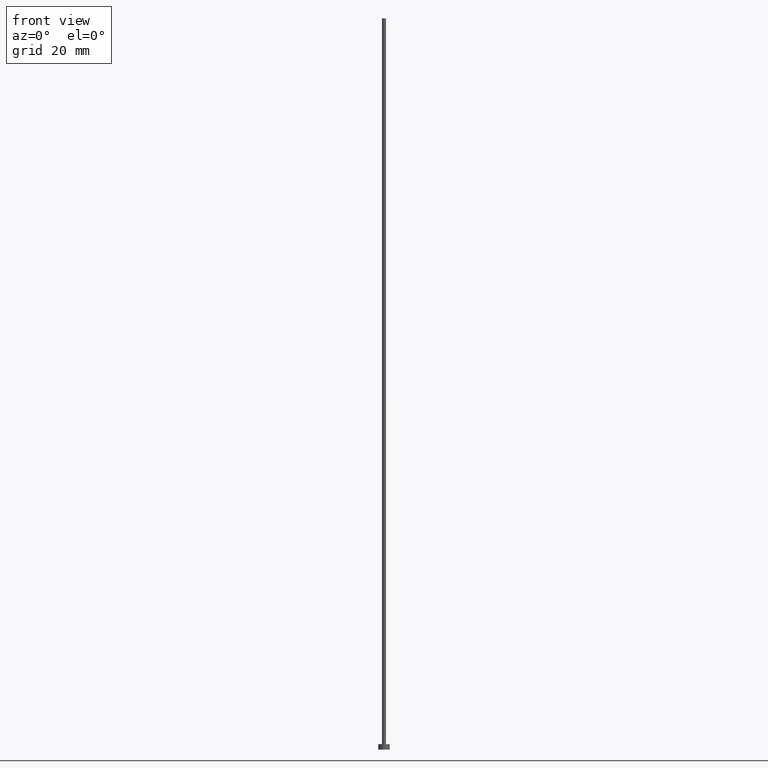
[diagram: clean part render]
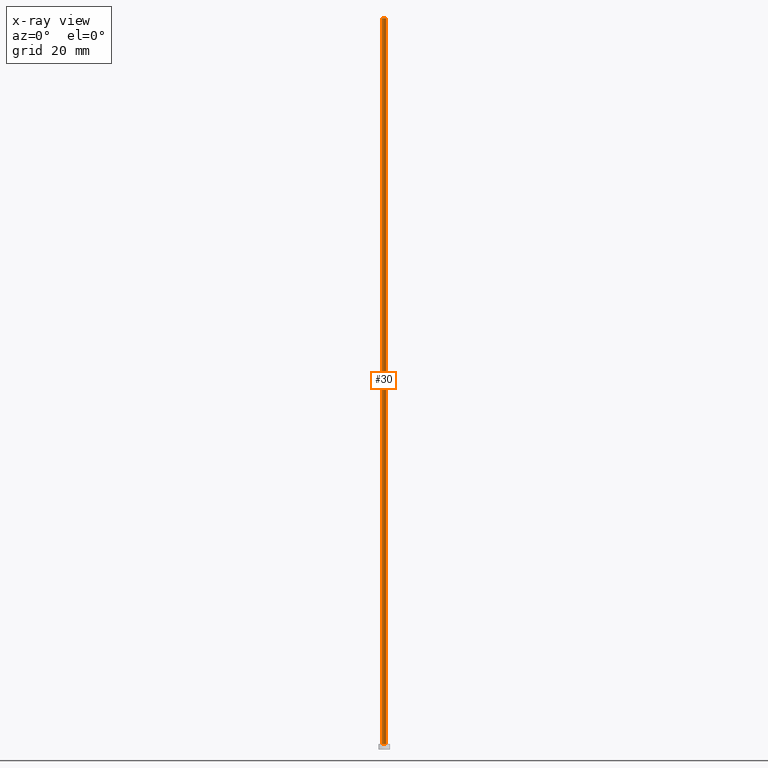
[diagram: x-ray — body ghosted, one internal face saturated and labeled with its STEP entity id]
A machine part, front view, then the same camera in x-ray: the body is ghosted and one INTERNAL B-rep face — a face not visible from any outside direction — is saturated and labeled: STEP entity #30.
In plain terms, the highlighted cylindrical surface (edge-blend (fillet) strip) has radius 0.45 mm, axis along (-0, -0, -1).
Its self-contained STEP definition (entity closure, byte-faithful):
#14 = VECTOR ( 'NONE', #18, 1000.000000000000000 ) ;
#16 = CARTESIAN_POINT ( 'NONE',  ( -0.4500000000000000111, 0.000000000000000000, 1.199999999999999956 ) ) ;
#17 = CARTESIAN_POINT ( 'NONE',  ( -0.4500000000000000111, 0.000000000000000000, 160.0000000000000284 ) ) ;
#18 = DIRECTION ( 'NONE',  ( -0.000000000000000000, -0.000000000000000000, -1.000000000000000000 ) ) ;
#21 = CARTESIAN_POINT ( 'NONE',  ( 0.4500000000000000111, 5.510910596163088939E-17, 160.0000000000000284 ) ) ;
#23 = AXIS2_PLACEMENT_3D ( 'NONE', #47, #129, #103 ) ;
#30 = ADVANCED_FACE ( 'NONE', ( #175 ), #222, .T. ) ;
#47 = CARTESIAN_POINT ( 'NONE',  ( 0.000000000000000000, 0.000000000000000000, 160.0000000000000284 ) ) ;
#53 = DIRECTION ( 'NONE',  ( 1.000000000000000000, 0.000000000000000000, 0.000000000000000000 ) ) ;
#57 = DIRECTION ( 'NONE',  ( -0.000000000000000000, -0.000000000000000000, -1.000000000000000000 ) ) ;
#65 = ORIENTED_EDGE ( 'NONE', *, *, #236, .T. ) ;
#67 = VECTOR ( 'NONE', #57, 1000.000000000000000 ) ;
#70 = ORIENTED_EDGE ( 'NONE', *, *, #164, .F. ) ;
#76 = ORIENTED_EDGE ( 'NONE', *, *, #108, .F. ) ;
#81 = LINE ( 'NONE', #17, #14 ) ;
#83 = LINE ( 'NONE', #21, #67 ) ;
#84 = EDGE_CURVE ( 'NONE', #177, #170, #83, .T. ) ;
#97 = CARTESIAN_POINT ( 'NONE',  ( 0.000000000000000000, 0.000000000000000000, 160.0000000000000284 ) ) ;
#98 = CARTESIAN_POINT ( 'NONE',  ( 0.4500000000000000111, 5.510910596163088939E-17, 160.0000000000000284 ) ) ;
#100 = CARTESIAN_POINT ( 'NONE',  ( 0.4500000000000000111, 5.510910596163088939E-17, 1.199999999999999956 ) ) ;
#103 = DIRECTION ( 'NONE',  ( -1.000000000000000000, 0.000000000000000000, 0.000000000000000000 ) ) ;
#108 = EDGE_CURVE ( 'NONE', #177, #144, #203, .T. ) ;
#129 = DIRECTION ( 'NONE',  ( -0.000000000000000000, -0.000000000000000000, -1.000000000000000000 ) ) ;
#138 = DIRECTION ( 'NONE',  ( 1.000000000000000000, 0.000000000000000000, 0.000000000000000000 ) ) ;
#141 = CARTESIAN_POINT ( 'NONE',  ( -0.4500000000000000111, 0.000000000000000000, 160.0000000000000284 ) ) ;
#144 = VERTEX_POINT ( 'NONE', #141 ) ;
#155 = CARTESIAN_POINT ( 'NONE',  ( 0.000000000000000000, 0.000000000000000000, 1.199999999999999956 ) ) ;
#164 = EDGE_CURVE ( 'NONE', #144, #206, #81, .T. ) ;
#169 = AXIS2_PLACEMENT_3D ( 'NONE', #155, #226, #53 ) ;
#170 = VERTEX_POINT ( 'NONE', #100 ) ;
#173 = CIRCLE ( 'NONE', #169, 0.4500000000000000111 ) ;
#175 = FACE_OUTER_BOUND ( 'NONE', #190, .T. ) ;
#177 = VERTEX_POINT ( 'NONE', #98 ) ;
#190 = EDGE_LOOP ( 'NONE', ( #76, #214, #65, #70 ) ) ;
#203 = CIRCLE ( 'NONE', #231, 0.4500000000000000111 ) ;
#206 = VERTEX_POINT ( 'NONE', #16 ) ;
#213 = DIRECTION ( 'NONE',  ( 0.000000000000000000, 0.000000000000000000, 1.000000000000000000 ) ) ;
#214 = ORIENTED_EDGE ( 'NONE', *, *, #84, .T. ) ;
#222 = CYLINDRICAL_SURFACE ( 'NONE', #23, 0.4500000000000000111 ) ;
#226 = DIRECTION ( 'NONE',  ( 0.000000000000000000, 0.000000000000000000, 1.000000000000000000 ) ) ;
#231 = AXIS2_PLACEMENT_3D ( 'NONE', #97, #213, #138 ) ;
#236 = EDGE_CURVE ( 'NONE', #170, #206, #173, .T. ) ;